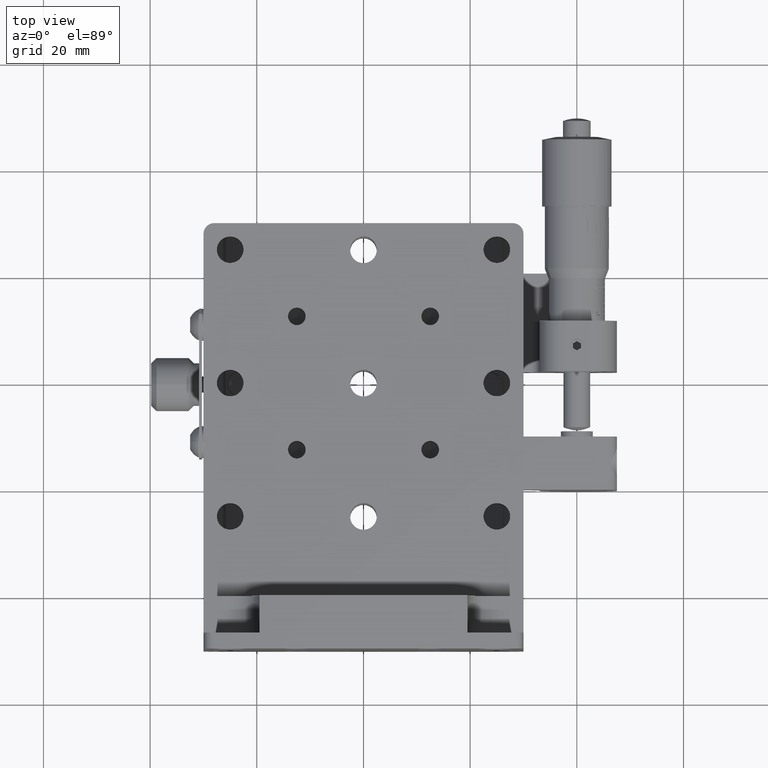
[diagram: clean part render]
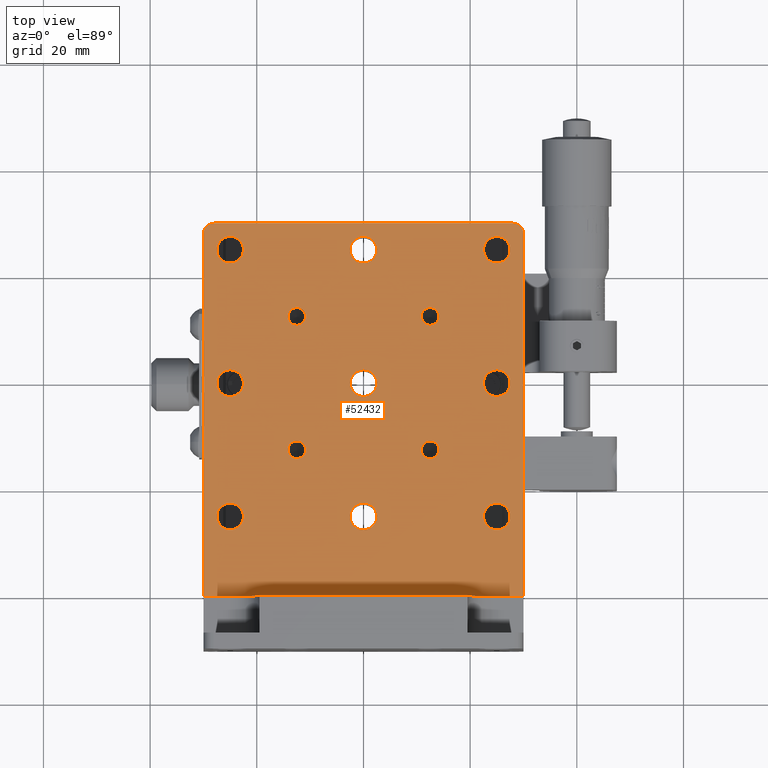
[diagram: same view with one face highlighted and labeled with its STEP entity id]
A machine part, top view. The second image highlights one B-rep face of the part: STEP entity #52432.
In plain terms, the highlighted planar face has unit normal (-0, -0, -1).
Its self-contained STEP definition (entity closure, byte-faithful):
#268 = CIRCLE ( 'NONE', #9027, 2.499999999999988500 ) ;
#290 = EDGE_LOOP ( 'NONE', ( #30946, #33592 ) ) ;
#384 = FACE_BOUND ( 'NONE', #41287, .T. ) ;
#573 = AXIS2_PLACEMENT_3D ( 'NONE', #9690, #56494, #33640 ) ;
#1139 = CIRCLE ( 'NONE', #40703, 2.499999999999988500 ) ;
#1171 = CARTESIAN_POINT ( 'NONE',  ( 25.00000000000006400, 40.00000000000010700, 3.500000000000247800 ) ) ;
#1543 = DIRECTION ( 'NONE',  ( 7.494005416227522700E-016, -1.000000000000000000, -7.407882006856690300E-015 ) ) ;
#1576 = VERTEX_POINT ( 'NONE', #27529 ) ;
#1705 = VERTEX_POINT ( 'NONE', #23640 ) ;
#1725 = DIRECTION ( 'NONE',  ( 1.000000000000000000, -7.494005416227493100E-016, -1.239620023932333000E-015 ) ) ;
#1942 = CARTESIAN_POINT ( 'NONE',  ( -30.00000000000000000, 5.679741025172819200E-014, 3.500000000000022200 ) ) ;
#2282 = DIRECTION ( 'NONE',  ( 7.633942006392911000E-016, -9.804398286584535200E-015, -1.000000000000000000 ) ) ;
#2469 = DIRECTION ( 'NONE',  ( -7.633942006392911000E-016, 9.804398286584535200E-015, 1.000000000000000000 ) ) ;
#2555 = EDGE_CURVE ( 'NONE', #12235, #28770, #55083, .T. ) ;
#2676 = ORIENTED_EDGE ( 'NONE', *, *, #34976, .F. ) ;
#2739 = EDGE_CURVE ( 'NONE', #29596, #5010, #11908, .T. ) ;
#2808 = DIRECTION ( 'NONE',  ( -1.387778780781452200E-015, 1.000000000000000000, 7.459310946700305200E-015 ) ) ;
#2933 = DIRECTION ( 'NONE',  ( -7.633942006392911000E-016, 9.804398286584535200E-015, 1.000000000000000000 ) ) ;
#3099 = CARTESIAN_POINT ( 'NONE',  ( -24.99999999999998900, 12.50000000000004600, 3.500000000000139000 ) ) ;
#3122 = AXIS2_PLACEMENT_3D ( 'NONE', #52470, #47592, #24747 ) ;
#3135 = ORIENTED_EDGE ( 'NONE', *, *, #43106, .F. ) ;
#3547 = EDGE_LOOP ( 'NONE', ( #20198, #7377 ) ) ;
#3796 = DIRECTION ( 'NONE',  ( -7.494005416227521700E-016, 1.000000000000000000, 7.459310946700305200E-015 ) ) ;
#4083 = ORIENTED_EDGE ( 'NONE', *, *, #29937, .F. ) ;
#4119 = VERTEX_POINT ( 'NONE', #26475 ) ;
#4152 = DIRECTION ( 'NONE',  ( -1.387778780781452200E-015, 1.000000000000000000, 7.459310946700305200E-015 ) ) ;
#4357 = AXIS2_PLACEMENT_3D ( 'NONE', #24013, #38484, #38281 ) ;
#4411 = VERTEX_POINT ( 'NONE', #12683 ) ;
#4777 = CARTESIAN_POINT ( 'NONE',  ( -28.00000000000009200, 70.00000000000000000, 3.500000000000534700 ) ) ;
#4914 = EDGE_CURVE ( 'NONE', #29124, #19558, #47842, .T. ) ;
#5010 = VERTEX_POINT ( 'NONE', #55834 ) ;
#5065 = CARTESIAN_POINT ( 'NONE',  ( 24.99999999999999300, 15.00000000000003400, 3.500000000000067100 ) ) ;
#5156 = DIRECTION ( 'NONE',  ( -1.051347561198072300E-015, 1.000000000000000000, 7.359432928386505700E-015 ) ) ;
#5267 = DIRECTION ( 'NONE',  ( -7.494005416227532600E-016, 1.000000000000000000, 7.459310946700305200E-015 ) ) ;
#5469 = DIRECTION ( 'NONE',  ( -7.633942006392911000E-016, 9.804398286584535200E-015, 1.000000000000000000 ) ) ;
#5559 = DIRECTION ( 'NONE',  ( -7.633942006392911000E-016, 9.804398286584535200E-015, 1.000000000000000000 ) ) ;
#5779 = CARTESIAN_POINT ( 'NONE',  ( -5.138291490771637900E-014, 65.00000000000000000, 3.500000000000455200 ) ) ;
#5791 = CARTESIAN_POINT ( 'NONE',  ( 24.99999999999999300, 15.00000000000003400, 3.500000000000067100 ) ) ;
#5857 = CIRCLE ( 'NONE', #49258, 1.649999999999988400 ) ;
#5865 = EDGE_LOOP ( 'NONE', ( #42092, #53228 ) ) ;
#5925 = CARTESIAN_POINT ( 'NONE',  ( -30.00000000000000000, 5.679741025172813500E-014, 3.500000000000016900 ) ) ;
#6037 = CARTESIAN_POINT ( 'NONE',  ( 30.00000000000005300, 1.183337775436325100E-014, 3.499999999999951200 ) ) ;
#6399 = CARTESIAN_POINT ( 'NONE',  ( 12.50000000000006800, 27.50000000000000700, 3.500000000000170500 ) ) ;
#7065 = DIRECTION ( 'NONE',  ( -1.051347561198070100E-015, 1.000000000000000000, 7.359432928386491500E-015 ) ) ;
#7280 = CIRCLE ( 'NONE', #49268, 2.000000000000001800 ) ;
#7377 = ORIENTED_EDGE ( 'NONE', *, *, #57797, .F. ) ;
#7643 = EDGE_LOOP ( 'NONE', ( #53003, #33400 ) ) ;
#7842 = CIRCLE ( 'NONE', #44199, 1.649999999999988400 ) ;
#8296 = DIRECTION ( 'NONE',  ( -1.051347561198070100E-015, 1.000000000000000000, 7.359432928386491500E-015 ) ) ;
#8508 = AXIS2_PLACEMENT_3D ( 'NONE', #54023, #2282, #25875 ) ;
#8663 = VECTOR ( 'NONE', #1543, 1000.000000000000000 ) ;
#9027 = AXIS2_PLACEMENT_3D ( 'NONE', #9973, #33302, #5267 ) ;
#9105 = DIRECTION ( 'NONE',  ( -1.239620023932340300E-015, -9.804398286584533700E-015, -1.000000000000000000 ) ) ;
#9161 = EDGE_CURVE ( 'NONE', #45798, #15408, #5857, .T. ) ;
#9643 = CARTESIAN_POINT ( 'NONE',  ( -1.578638918063565600E-014, 17.50000000000002100, 3.500000000000106100 ) ) ;
#9690 = CARTESIAN_POINT ( 'NONE',  ( 25.00000000000006400, 40.00000000000010700, 3.500000000000247800 ) ) ;
#9824 = CARTESIAN_POINT ( 'NONE',  ( 24.99999999999989700, 67.49999999999998600, 3.500000000000453000 ) ) ;
#9833 = CARTESIAN_POINT ( 'NONE',  ( -5.138291490771637900E-014, 65.00000000000000000, 3.500000000000455200 ) ) ;
#9973 = CARTESIAN_POINT ( 'NONE',  ( 2.286324986411022300E-014, 40.00000000000010700, 3.500000000000274000 ) ) ;
#10476 = DIRECTION ( 'NONE',  ( -7.633942006392911000E-016, 9.804398286584535200E-015, 1.000000000000000000 ) ) ;
#10651 = FACE_BOUND ( 'NONE', #47871, .T. ) ;
#10802 = CIRCLE ( 'NONE', #573, 2.499999999999988500 ) ;
#11106 = AXIS2_PLACEMENT_3D ( 'NONE', #30977, #2933, #35707 ) ;
#11238 = CARTESIAN_POINT ( 'NONE',  ( 12.50000000000006800, 27.50000000000000700, 3.500000000000170500 ) ) ;
#11474 = ORIENTED_EDGE ( 'NONE', *, *, #19177, .F. ) ;
#11750 = DIRECTION ( 'NONE',  ( -7.633942006392911000E-016, 9.804398286584535200E-015, 1.000000000000000000 ) ) ;
#11908 = CIRCLE ( 'NONE', #23758, 2.499999999999988500 ) ;
#12030 = DIRECTION ( 'NONE',  ( -1.051347561198072300E-015, 1.000000000000000000, 7.359432928386505700E-015 ) ) ;
#12128 = FACE_BOUND ( 'NONE', #18551, .T. ) ;
#12157 = CARTESIAN_POINT ( 'NONE',  ( -24.99999999999994000, 40.00000000000010700, 3.500000000000300600 ) ) ;
#12235 = VERTEX_POINT ( 'NONE', #5925 ) ;
#12683 = CARTESIAN_POINT ( 'NONE',  ( -4.714369555120884500E-014, 62.50000000000001400, 3.500000000000479600 ) ) ;
#12901 = FACE_BOUND ( 'NONE', #36900, .T. ) ;
#13408 = CARTESIAN_POINT ( 'NONE',  ( -12.50000000000005900, 52.50000000000009900, 3.500000000000377900 ) ) ;
#13523 = CARTESIAN_POINT ( 'NONE',  ( -24.99999999999993600, 37.50000000000011400, 3.500000000000325500 ) ) ;
#13687 = VERTEX_POINT ( 'NONE', #31541 ) ;
#14253 = CARTESIAN_POINT ( 'NONE',  ( -12.50000000000000700, 25.85000000000006900, 3.500000000000206900 ) ) ;
#14346 = AXIS2_PLACEMENT_3D ( 'NONE', #33043, #9105, #42475 ) ;
#14350 = DIRECTION ( 'NONE',  ( -1.051347561198070100E-015, 1.000000000000000000, 7.359432928386491500E-015 ) ) ;
#14487 = CARTESIAN_POINT ( 'NONE',  ( -24.99999999999994000, 40.00000000000010700, 3.500000000000300600 ) ) ;
#14673 = CARTESIAN_POINT ( 'NONE',  ( 27.99999999999990400, 68.00000000000000000, 3.500000000000459200 ) ) ;
#15072 = FACE_BOUND ( 'NONE', #5865, .T. ) ;
#15408 = VERTEX_POINT ( 'NONE', #47180 ) ;
#15798 = CIRCLE ( 'NONE', #53194, 1.649999999999991700 ) ;
#16183 = DIRECTION ( 'NONE',  ( -1.051347561198072300E-015, 1.000000000000000000, 7.359432928386505700E-015 ) ) ;
#16417 = CIRCLE ( 'NONE', #39120, 2.499999999999988500 ) ;
#16436 = CARTESIAN_POINT ( 'NONE',  ( -24.99999999999999300, 15.00000000000003400, 3.500000000000114100 ) ) ;
#16958 = AXIS2_PLACEMENT_3D ( 'NONE', #16436, #34446, #57893 ) ;
#17106 = EDGE_CURVE ( 'NONE', #26003, #41368, #10802, .T. ) ;
#17242 = AXIS2_PLACEMENT_3D ( 'NONE', #1171, #48282, #52735 ) ;
#17312 = CIRCLE ( 'NONE', #54801, 2.499999999999988500 ) ;
#17587 = AXIS2_PLACEMENT_3D ( 'NONE', #54047, #11750, #58714 ) ;
#18022 = FACE_BOUND ( 'NONE', #48233, .T. ) ;
#18242 = ORIENTED_EDGE ( 'NONE', *, *, #27768, .F. ) ;
#18551 = EDGE_LOOP ( 'NONE', ( #51803, #28927 ) ) ;
#18886 = CARTESIAN_POINT ( 'NONE',  ( 12.50000000000002000, 52.50000000000009900, 3.500000000000357500 ) ) ;
#19177 = EDGE_CURVE ( 'NONE', #29482, #36779, #7280, .T. ) ;
#19558 = VERTEX_POINT ( 'NONE', #31431 ) ;
#19785 = CARTESIAN_POINT ( 'NONE',  ( 12.50000000000002300, 50.85000000000010800, 3.500000000000373500 ) ) ;
#19798 = EDGE_CURVE ( 'NONE', #4119, #31443, #57698, .T. ) ;
#19860 = LINE ( 'NONE', #51783, #54183 ) ;
#19882 = ORIENTED_EDGE ( 'NONE', *, *, #59329, .F. ) ;
#19908 = CARTESIAN_POINT ( 'NONE',  ( -5.325641626177324900E-014, 67.49999999999998600, 3.500000000000473800 ) ) ;
#20136 = CARTESIAN_POINT ( 'NONE',  ( 29.99999999999990400, 68.00000000000001400, 3.500000000000453400 ) ) ;
#20198 = ORIENTED_EDGE ( 'NONE', *, *, #2739, .F. ) ;
#20295 = DIRECTION ( 'NONE',  ( -7.633942006392911000E-016, 9.804398286584535200E-015, 1.000000000000000000 ) ) ;
#20551 = EDGE_CURVE ( 'NONE', #30765, #41814, #23326, .T. ) ;
#20835 = CIRCLE ( 'NONE', #51241, 2.499999999999988500 ) ;
#21208 = EDGE_LOOP ( 'NONE', ( #40642, #26983 ) ) ;
#21621 = DIRECTION ( 'NONE',  ( -1.387778780781452200E-015, 1.000000000000000000, 7.459310946700305200E-015 ) ) ;
#21659 = DIRECTION ( 'NONE',  ( -1.387778780781452200E-015, 1.000000000000000000, 7.459310946700305200E-015 ) ) ;
#21842 = EDGE_CURVE ( 'NONE', #41814, #30765, #17312, .T. ) ;
#21934 = AXIS2_PLACEMENT_3D ( 'NONE', #14487, #28406, #33523 ) ;
#22007 = CARTESIAN_POINT ( 'NONE',  ( -12.50000000000005900, 52.50000000000009900, 3.500000000000377900 ) ) ;
#22808 = DIRECTION ( 'NONE',  ( -7.633942006392911000E-016, 9.804398286584535200E-015, 1.000000000000000000 ) ) ;
#23001 = AXIS2_PLACEMENT_3D ( 'NONE', #54530, #58804, #12030 ) ;
#23027 = CARTESIAN_POINT ( 'NONE',  ( -25.00000000000009200, 67.49999999999998600, 3.500000000000500000 ) ) ;
#23108 = AXIS2_PLACEMENT_3D ( 'NONE', #22007, #22808, #41179 ) ;
#23326 = CIRCLE ( 'NONE', #17587, 2.499999999999988500 ) ;
#23640 = CARTESIAN_POINT ( 'NONE',  ( -24.99999999999999600, 17.50000000000002100, 3.500000000000132800 ) ) ;
#23662 = CIRCLE ( 'NONE', #33464, 2.499999999999988500 ) ;
#23758 = AXIS2_PLACEMENT_3D ( 'NONE', #53684, #45357, #21659 ) ;
#24013 = CARTESIAN_POINT ( 'NONE',  ( 2.286324986411022300E-014, 40.00000000000010700, 3.500000000000274000 ) ) ;
#24031 = CARTESIAN_POINT ( 'NONE',  ( -12.50000000000001100, 27.50000000000005700, 3.500000000000191000 ) ) ;
#24107 = LINE ( 'NONE', #53311, #8663 ) ;
#24198 = EDGE_CURVE ( 'NONE', #43385, #48555, #268, .T. ) ;
#24449 = DIRECTION ( 'NONE',  ( -1.387778780781452200E-015, 1.000000000000000000, 7.459310946700305200E-015 ) ) ;
#24747 = DIRECTION ( 'NONE',  ( -1.387778780781452200E-015, 1.000000000000000000, 7.459310946700305200E-015 ) ) ;
#24851 = EDGE_CURVE ( 'NONE', #41437, #29934, #28795, .T. ) ;
#25011 = EDGE_CURVE ( 'NONE', #48555, #43385, #28975, .T. ) ;
#25264 = DIRECTION ( 'NONE',  ( -1.051347561198072300E-015, 1.000000000000000000, 7.359432928386505700E-015 ) ) ;
#25426 = CIRCLE ( 'NONE', #55802, 2.499999999999988500 ) ;
#25736 = LINE ( 'NONE', #56912, #43252 ) ;
#25875 = DIRECTION ( 'NONE',  ( 0.0000000000000000000, 1.000000000000000000, 7.372574772901423800E-015 ) ) ;
#25894 = EDGE_LOOP ( 'NONE', ( #28254, #47178 ) ) ;
#26003 = VERTEX_POINT ( 'NONE', #46850 ) ;
#26063 = CARTESIAN_POINT ( 'NONE',  ( 2.098974851005334900E-014, 42.50000000000009200, 3.500000000000292700 ) ) ;
#26082 = FACE_OUTER_BOUND ( 'NONE', #37540, .T. ) ;
#26192 = ORIENTED_EDGE ( 'NONE', *, *, #35127, .F. ) ;
#26475 = CARTESIAN_POINT ( 'NONE',  ( -30.00000000000009200, 68.00000000000000000, 3.500000000000519100 ) ) ;
#26527 = DIRECTION ( 'NONE',  ( -7.633942006392911000E-016, 9.804398286584535200E-015, 1.000000000000000000 ) ) ;
#26622 = ORIENTED_EDGE ( 'NONE', *, *, #29932, .F. ) ;
#26983 = ORIENTED_EDGE ( 'NONE', *, *, #30450, .F. ) ;
#27350 = DIRECTION ( 'NONE',  ( -7.633942006392911000E-016, 9.804398286584535200E-015, 1.000000000000000000 ) ) ;
#27529 = CARTESIAN_POINT ( 'NONE',  ( -12.50000000000006000, 54.15000000000009100, 3.500000000000389900 ) ) ;
#27768 = EDGE_CURVE ( 'NONE', #44266, #1705, #45779, .T. ) ;
#28254 = ORIENTED_EDGE ( 'NONE', *, *, #47992, .F. ) ;
#28406 = DIRECTION ( 'NONE',  ( -7.633942006392911000E-016, 9.804398286584535200E-015, 1.000000000000000000 ) ) ;
#28484 = EDGE_CURVE ( 'NONE', #45338, #34386, #31103, .T. ) ;
#28550 = CIRCLE ( 'NONE', #16958, 2.499999999999988500 ) ;
#28558 = CARTESIAN_POINT ( 'NONE',  ( -12.50000000000005500, 50.85000000000010800, 3.500000000000393900 ) ) ;
#28770 = VERTEX_POINT ( 'NONE', #6037 ) ;
#28795 = CIRCLE ( 'NONE', #46306, 1.649999999999991700 ) ;
#28865 = EDGE_LOOP ( 'NONE', ( #26192, #18242 ) ) ;
#28927 = ORIENTED_EDGE ( 'NONE', *, *, #29286, .F. ) ;
#28975 = CIRCLE ( 'NONE', #4357, 2.499999999999988500 ) ;
#29124 = VERTEX_POINT ( 'NONE', #23027 ) ;
#29286 = EDGE_CURVE ( 'NONE', #34386, #45338, #7842, .T. ) ;
#29482 = VERTEX_POINT ( 'NONE', #46079 ) ;
#29554 = VERTEX_POINT ( 'NONE', #13523 ) ;
#29596 = VERTEX_POINT ( 'NONE', #9824 ) ;
#29932 = EDGE_CURVE ( 'NONE', #13687, #56102, #1139, .T. ) ;
#29934 = VERTEX_POINT ( 'NONE', #56376 ) ;
#29937 = EDGE_CURVE ( 'NONE', #29554, #34933, #36364, .T. ) ;
#30338 = CIRCLE ( 'NONE', #54941, 2.499999999999988500 ) ;
#30450 = EDGE_CURVE ( 'NONE', #59869, #1576, #15798, .T. ) ;
#30660 = DIRECTION ( 'NONE',  ( -7.633942006392911000E-016, 9.804398286584535200E-015, 1.000000000000000000 ) ) ;
#30765 = VERTEX_POINT ( 'NONE', #36463 ) ;
#30946 = ORIENTED_EDGE ( 'NONE', *, *, #39961, .F. ) ;
#30977 = CARTESIAN_POINT ( 'NONE',  ( -25.00000000000008900, 65.00000000000000000, 3.500000000000481400 ) ) ;
#31103 = CIRCLE ( 'NONE', #23001, 1.649999999999988400 ) ;
#31431 = CARTESIAN_POINT ( 'NONE',  ( -25.00000000000008500, 62.50000000000001400, 3.500000000000506300 ) ) ;
#31443 = VERTEX_POINT ( 'NONE', #4777 ) ;
#31541 = CARTESIAN_POINT ( 'NONE',  ( 24.99999999999999600, 12.50000000000004600, 3.500000000000091500 ) ) ;
#31992 = ORIENTED_EDGE ( 'NONE', *, *, #56930, .F. ) ;
#32197 = CARTESIAN_POINT ( 'NONE',  ( -25.00000000000008900, 65.00000000000000000, 3.500000000000481400 ) ) ;
#32375 = DIRECTION ( 'NONE',  ( -7.633942006392911000E-016, 9.804398286584535200E-015, 1.000000000000000000 ) ) ;
#32590 = EDGE_LOOP ( 'NONE', ( #19882, #57636 ) ) ;
#32633 = CARTESIAN_POINT ( 'NONE',  ( 25.00000000000006000, 42.50000000000009200, 3.500000000000266500 ) ) ;
#33043 = CARTESIAN_POINT ( 'NONE',  ( -30.00000000000009200, 70.00000000000000000, 3.500000000000541300 ) ) ;
#33302 = DIRECTION ( 'NONE',  ( -7.633942006392911000E-016, 9.804398286584535200E-015, 1.000000000000000000 ) ) ;
#33400 = ORIENTED_EDGE ( 'NONE', *, *, #20551, .F. ) ;
#33464 = AXIS2_PLACEMENT_3D ( 'NONE', #32197, #41022, #4152 ) ;
#33523 = DIRECTION ( 'NONE',  ( -1.387778780781452200E-015, 1.000000000000000000, 7.459310946700305200E-015 ) ) ;
#33592 = ORIENTED_EDGE ( 'NONE', *, *, #9161, .F. ) ;
#33640 = DIRECTION ( 'NONE',  ( -1.387778780781452200E-015, 1.000000000000000000, 7.459310946700305200E-015 ) ) ;
#34019 = ORIENTED_EDGE ( 'NONE', *, *, #19798, .F. ) ;
#34386 = VERTEX_POINT ( 'NONE', #14253 ) ;
#34446 = DIRECTION ( 'NONE',  ( -7.633942006392911000E-016, 9.804398286584535200E-015, 1.000000000000000000 ) ) ;
#34463 = CIRCLE ( 'NONE', #59992, 1.649999999999991700 ) ;
#34933 = VERTEX_POINT ( 'NONE', #59762 ) ;
#34976 = EDGE_CURVE ( 'NONE', #36779, #28770, #19860, .T. ) ;
#35127 = EDGE_CURVE ( 'NONE', #1705, #44266, #28550, .T. ) ;
#35287 = ORIENTED_EDGE ( 'NONE', *, *, #4914, .F. ) ;
#35506 = AXIS2_PLACEMENT_3D ( 'NONE', #58996, #30660, #2808 ) ;
#35707 = DIRECTION ( 'NONE',  ( -1.387778780781452200E-015, 1.000000000000000000, 7.459310946700305200E-015 ) ) ;
#36309 = FACE_BOUND ( 'NONE', #7643, .T. ) ;
#36364 = CIRCLE ( 'NONE', #21934, 2.499999999999988500 ) ;
#36463 = CARTESIAN_POINT ( 'NONE',  ( -9.673668470071248700E-015, 12.50000000000004600, 3.500000000000112400 ) ) ;
#36779 = VERTEX_POINT ( 'NONE', #20136 ) ;
#36900 = EDGE_LOOP ( 'NONE', ( #50711, #4083 ) ) ;
#37540 = EDGE_LOOP ( 'NONE', ( #2676, #11474, #40387, #34019, #52986, #57032 ) ) ;
#38179 = AXIS2_PLACEMENT_3D ( 'NONE', #11238, #20295, #16183 ) ;
#38281 = DIRECTION ( 'NONE',  ( -7.494005416227532600E-016, 1.000000000000000000, 7.459310946700305200E-015 ) ) ;
#38484 = DIRECTION ( 'NONE',  ( -7.633942006392911000E-016, 9.804398286584535200E-015, 1.000000000000000000 ) ) ;
#38746 = DIRECTION ( 'NONE',  ( -7.633942006392911000E-016, 9.804398286584535200E-015, 1.000000000000000000 ) ) ;
#39120 = AXIS2_PLACEMENT_3D ( 'NONE', #5791, #38746, #24449 ) ;
#39757 = VECTOR ( 'NONE', #1725, 1000.000000000000000 ) ;
#39961 = EDGE_CURVE ( 'NONE', #15408, #45798, #54038, .T. ) ;
#40387 = ORIENTED_EDGE ( 'NONE', *, *, #54706, .F. ) ;
#40642 = ORIENTED_EDGE ( 'NONE', *, *, #44290, .F. ) ;
#40703 = AXIS2_PLACEMENT_3D ( 'NONE', #5065, #5469, #42522 ) ;
#41022 = DIRECTION ( 'NONE',  ( -7.633942006392911000E-016, 9.804398286584535200E-015, 1.000000000000000000 ) ) ;
#41179 = DIRECTION ( 'NONE',  ( -1.051347561198070100E-015, 1.000000000000000000, 7.359432928386491500E-015 ) ) ;
#41287 = EDGE_LOOP ( 'NONE', ( #31992, #48002 ) ) ;
#41368 = VERTEX_POINT ( 'NONE', #32633 ) ;
#41437 = VERTEX_POINT ( 'NONE', #19785 ) ;
#41660 = EDGE_CURVE ( 'NONE', #34933, #29554, #25426, .T. ) ;
#41814 = VERTEX_POINT ( 'NONE', #9643 ) ;
#41853 = VERTEX_POINT ( 'NONE', #19908 ) ;
#42092 = ORIENTED_EDGE ( 'NONE', *, *, #24198, .F. ) ;
#42475 = DIRECTION ( 'NONE',  ( 1.000000000000000000, -7.494005416227493100E-016, -1.239620023932333000E-015 ) ) ;
#42522 = DIRECTION ( 'NONE',  ( -1.387778780781452200E-015, 1.000000000000000000, 7.459310946700305200E-015 ) ) ;
#42887 = FACE_BOUND ( 'NONE', #32590, .T. ) ;
#43056 = DIRECTION ( 'NONE',  ( 1.000000000000000000, -7.494005416227493100E-016, -1.239620023932333000E-015 ) ) ;
#43106 = EDGE_CURVE ( 'NONE', #56102, #13687, #16417, .T. ) ;
#43252 = VECTOR ( 'NONE', #43056, 1000.000000000000000 ) ;
#43385 = VERTEX_POINT ( 'NONE', #26063 ) ;
#44199 = AXIS2_PLACEMENT_3D ( 'NONE', #24031, #5559, #5156 ) ;
#44266 = VERTEX_POINT ( 'NONE', #3099 ) ;
#44290 = EDGE_CURVE ( 'NONE', #1576, #59869, #53605, .T. ) ;
#44559 = EDGE_CURVE ( 'NONE', #4411, #41853, #20835, .T. ) ;
#45056 = CARTESIAN_POINT ( 'NONE',  ( 2.710246922061776300E-014, 37.50000000000011400, 3.500000000000298900 ) ) ;
#45338 = VERTEX_POINT ( 'NONE', #58753 ) ;
#45357 = DIRECTION ( 'NONE',  ( -7.633942006392911000E-016, 9.804398286584535200E-015, 1.000000000000000000 ) ) ;
#45758 = CARTESIAN_POINT ( 'NONE',  ( -1.391288782657878400E-014, 15.00000000000003400, 3.500000000000087500 ) ) ;
#45779 = CIRCLE ( 'NONE', #35506, 2.499999999999988500 ) ;
#45798 = VERTEX_POINT ( 'NONE', #55254 ) ;
#46079 = CARTESIAN_POINT ( 'NONE',  ( 27.99999999999990400, 70.00000000000000000, 3.500000000000474700 ) ) ;
#46296 = ORIENTED_EDGE ( 'NONE', *, *, #60024, .F. ) ;
#46306 = AXIS2_PLACEMENT_3D ( 'NONE', #18886, #32375, #14350 ) ;
#46850 = CARTESIAN_POINT ( 'NONE',  ( 25.00000000000006800, 37.50000000000011400, 3.500000000000272200 ) ) ;
#47178 = ORIENTED_EDGE ( 'NONE', *, *, #24851, .F. ) ;
#47180 = CARTESIAN_POINT ( 'NONE',  ( 12.50000000000006600, 29.14999999999999500, 3.500000000000182500 ) ) ;
#47264 = FACE_BOUND ( 'NONE', #28865, .T. ) ;
#47392 = DIRECTION ( 'NONE',  ( 7.633942006392911000E-016, -9.804398286584535200E-015, -1.000000000000000000 ) ) ;
#47592 = DIRECTION ( 'NONE',  ( -7.633942006392911000E-016, 9.804398286584535200E-015, 1.000000000000000000 ) ) ;
#47789 = DIRECTION ( 'NONE',  ( 0.0000000000000000000, -1.000000000000000000, -7.372574772901423800E-015 ) ) ;
#47842 = CIRCLE ( 'NONE', #11106, 2.499999999999988500 ) ;
#47871 = EDGE_LOOP ( 'NONE', ( #35287, #46296 ) ) ;
#47911 = DIRECTION ( 'NONE',  ( -7.494005416227521700E-016, 1.000000000000000000, 7.459310946700305200E-015 ) ) ;
#47980 = FACE_BOUND ( 'NONE', #290, .T. ) ;
#47992 = EDGE_CURVE ( 'NONE', #29934, #41437, #34463, .T. ) ;
#48002 = ORIENTED_EDGE ( 'NONE', *, *, #17106, .F. ) ;
#48074 = DIRECTION ( 'NONE',  ( -7.494005416227521700E-016, 1.000000000000000000, 7.459310946700305200E-015 ) ) ;
#48233 = EDGE_LOOP ( 'NONE', ( #3135, #26622 ) ) ;
#48282 = DIRECTION ( 'NONE',  ( -7.633942006392911000E-016, 9.804398286584535200E-015, 1.000000000000000000 ) ) ;
#48555 = VERTEX_POINT ( 'NONE', #45056 ) ;
#48766 = FACE_BOUND ( 'NONE', #25894, .T. ) ;
#49258 = AXIS2_PLACEMENT_3D ( 'NONE', #6399, #2469, #25264 ) ;
#49268 = AXIS2_PLACEMENT_3D ( 'NONE', #14673, #47392, #47789 ) ;
#49629 = EDGE_CURVE ( 'NONE', #4119, #12235, #24107, .T. ) ;
#50711 = ORIENTED_EDGE ( 'NONE', *, *, #41660, .F. ) ;
#50892 = FACE_BOUND ( 'NONE', #3547, .T. ) ;
#51241 = AXIS2_PLACEMENT_3D ( 'NONE', #9833, #57056, #48074 ) ;
#51395 = CARTESIAN_POINT ( 'NONE',  ( 24.99999999999998900, 17.50000000000002100, 3.500000000000085700 ) ) ;
#51783 = CARTESIAN_POINT ( 'NONE',  ( 29.99999999999996100, 70.00000000000000000, 3.500000000000461400 ) ) ;
#51803 = ORIENTED_EDGE ( 'NONE', *, *, #28484, .F. ) ;
#52432 = ADVANCED_FACE ( 'NONE', ( #12128, #55292, #47980, #48766, #47264, #36309, #18022, #12901, #15072, #384, #10651, #42887, #50892, #26082 ), #55733, .F. ) ;
#52470 = CARTESIAN_POINT ( 'NONE',  ( 24.99999999999990100, 65.00000000000000000, 3.500000000000434300 ) ) ;
#52735 = DIRECTION ( 'NONE',  ( -1.387778780781452200E-015, 1.000000000000000000, 7.459310946700305200E-015 ) ) ;
#52986 = ORIENTED_EDGE ( 'NONE', *, *, #49629, .T. ) ;
#53003 = ORIENTED_EDGE ( 'NONE', *, *, #21842, .F. ) ;
#53194 = AXIS2_PLACEMENT_3D ( 'NONE', #13408, #27350, #8296 ) ;
#53228 = ORIENTED_EDGE ( 'NONE', *, *, #25011, .F. ) ;
#53311 = CARTESIAN_POINT ( 'NONE',  ( -30.00000000000009200, 70.00000000000000000, 3.500000000000541300 ) ) ;
#53605 = CIRCLE ( 'NONE', #23108, 1.649999999999991700 ) ;
#53684 = CARTESIAN_POINT ( 'NONE',  ( 24.99999999999990100, 65.00000000000000000, 3.500000000000434300 ) ) ;
#54023 = CARTESIAN_POINT ( 'NONE',  ( -28.00000000000009200, 68.00000000000000000, 3.500000000000512900 ) ) ;
#54038 = CIRCLE ( 'NONE', #38179, 1.649999999999988400 ) ;
#54047 = CARTESIAN_POINT ( 'NONE',  ( -1.391288782657878400E-014, 15.00000000000003400, 3.500000000000087500 ) ) ;
#54183 = VECTOR ( 'NONE', #56295, 1000.000000000000000 ) ;
#54530 = CARTESIAN_POINT ( 'NONE',  ( -12.50000000000001100, 27.50000000000005700, 3.500000000000191000 ) ) ;
#54706 = EDGE_CURVE ( 'NONE', #31443, #29482, #25736, .T. ) ;
#54801 = AXIS2_PLACEMENT_3D ( 'NONE', #45758, #55121, #3796 ) ;
#54941 = AXIS2_PLACEMENT_3D ( 'NONE', #5779, #10476, #47911 ) ;
#55083 = LINE ( 'NONE', #1942, #39757 ) ;
#55121 = DIRECTION ( 'NONE',  ( -7.633942006392911000E-016, 9.804398286584535200E-015, 1.000000000000000000 ) ) ;
#55254 = CARTESIAN_POINT ( 'NONE',  ( 12.50000000000006900, 25.85000000000001900, 3.500000000000186500 ) ) ;
#55292 = FACE_BOUND ( 'NONE', #21208, .T. ) ;
#55733 = PLANE ( 'NONE',  #14346 ) ;
#55802 = AXIS2_PLACEMENT_3D ( 'NONE', #12157, #59326, #21621 ) ;
#55834 = CARTESIAN_POINT ( 'NONE',  ( 24.99999999999990400, 62.50000000000001400, 3.500000000000458700 ) ) ;
#56102 = VERTEX_POINT ( 'NONE', #51395 ) ;
#56116 = CIRCLE ( 'NONE', #17242, 2.499999999999988500 ) ;
#56295 = DIRECTION ( 'NONE',  ( 7.494005416227522700E-016, -1.000000000000000000, -7.407882006856690300E-015 ) ) ;
#56376 = CARTESIAN_POINT ( 'NONE',  ( 12.50000000000001800, 54.15000000000009100, 3.500000000000369500 ) ) ;
#56494 = DIRECTION ( 'NONE',  ( -7.633942006392911000E-016, 9.804398286584535200E-015, 1.000000000000000000 ) ) ;
#56743 = CIRCLE ( 'NONE', #3122, 2.499999999999988500 ) ;
#56912 = CARTESIAN_POINT ( 'NONE',  ( -30.00000000000009200, 70.00000000000000000, 3.500000000000541300 ) ) ;
#56930 = EDGE_CURVE ( 'NONE', #41368, #26003, #56116, .T. ) ;
#57032 = ORIENTED_EDGE ( 'NONE', *, *, #2555, .T. ) ;
#57056 = DIRECTION ( 'NONE',  ( -7.633942006392911000E-016, 9.804398286584535200E-015, 1.000000000000000000 ) ) ;
#57636 = ORIENTED_EDGE ( 'NONE', *, *, #44559, .F. ) ;
#57698 = CIRCLE ( 'NONE', #8508, 2.000000000000001800 ) ;
#57797 = EDGE_CURVE ( 'NONE', #5010, #29596, #56743, .T. ) ;
#57893 = DIRECTION ( 'NONE',  ( -1.387778780781452200E-015, 1.000000000000000000, 7.459310946700305200E-015 ) ) ;
#58714 = DIRECTION ( 'NONE',  ( -7.494005416227521700E-016, 1.000000000000000000, 7.459310946700305200E-015 ) ) ;
#58753 = CARTESIAN_POINT ( 'NONE',  ( -12.50000000000001200, 29.15000000000004500, 3.500000000000202900 ) ) ;
#58804 = DIRECTION ( 'NONE',  ( -7.633942006392911000E-016, 9.804398286584535200E-015, 1.000000000000000000 ) ) ;
#58996 = CARTESIAN_POINT ( 'NONE',  ( -24.99999999999999300, 15.00000000000003400, 3.500000000000114100 ) ) ;
#59151 = CARTESIAN_POINT ( 'NONE',  ( 12.50000000000002000, 52.50000000000009900, 3.500000000000357500 ) ) ;
#59326 = DIRECTION ( 'NONE',  ( -7.633942006392911000E-016, 9.804398286584535200E-015, 1.000000000000000000 ) ) ;
#59329 = EDGE_CURVE ( 'NONE', #41853, #4411, #30338, .T. ) ;
#59762 = CARTESIAN_POINT ( 'NONE',  ( -24.99999999999994300, 42.50000000000009200, 3.500000000000319300 ) ) ;
#59869 = VERTEX_POINT ( 'NONE', #28558 ) ;
#59992 = AXIS2_PLACEMENT_3D ( 'NONE', #59151, #26527, #7065 ) ;
#60024 = EDGE_CURVE ( 'NONE', #19558, #29124, #23662, .T. ) ;